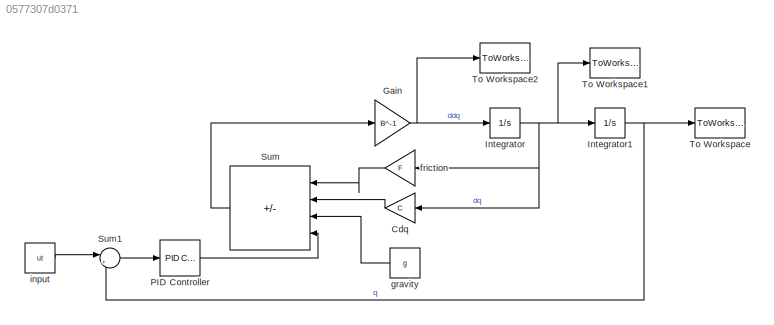
MODEL slx_0577307d0371
KIND model
CONFIG AbsTol = auto
CONFIG EnableMultiTasking = off
CONFIG FixedStep = auto
CONFIG MaxStep = auto
CONFIG MinStep = auto
CONFIG RelTol = 1e-3
CONFIG SampleTimeConstraint = Unconstrained
CONFIG SolverName = VariableStepAuto
CONFIG StartTime = 0.0
CONFIG StopTime = t_step
BLOCK [Gain] Cdq
  Gain = C
  Multiplication = Matrix(K*u)
BLOCK [Gain] Gain
  Gain = B^-1
  Multiplication = Matrix(K*u)
BLOCK [Integrator] Integrator
  InitialCondition = ddqt
BLOCK [Integrator] Integrator1
  InitialCondition = dqt
BLOCK [Reference] PID Controller  REF=slpidlib/PID Controller
  LibrarySourceBlock = simulink/Continuous/PID Controller
  SourceBlock = slpidlib/PID Controller
  SourceType = PID 1dof
BLOCK [Sum] Sum
  IconShape = rectangular
  Inputs = |---+
BLOCK [Sum] Sum1
  Inputs = |+-
BLOCK [ToWorkspace] To Workspace
  MaxDataPoints = inf
  SampleTime = -1
  Save2DSignal = 2-D array (concatenate along first dimension)
  VariableName = q
BLOCK [ToWorkspace] To Workspace1
  MaxDataPoints = inf
  SampleTime = -1
  Save2DSignal = 2-D array (concatenate along first dimension)
  VariableName = dq
BLOCK [ToWorkspace] To Workspace2
  MaxDataPoints = inf
  SampleTime = -1
  Save2DSignal = 2-D array (concatenate along first dimension)
  VariableName = ddq
BLOCK [Gain] friction
  Gain = F
  Multiplication = Matrix(K*u)
BLOCK [Constant] gravity
  Value = g
BLOCK [Constant] input
  Value = ut
LINE Cdq:1 -> Sum:2
NET Gain:1 -> Integrator:1, To Workspace2:1
NET Integrator1:1 -> Sum1:2, To Workspace:1
NET Integrator:1 -> Cdq:1, Integrator1:1, To Workspace1:1, friction:1
LINE PID Controller:1 -> Sum:4
LINE Sum1:1 -> PID Controller:1
LINE Sum:1 -> Gain:1
LINE friction:1 -> Sum:1
LINE gravity:1 -> Sum:3
LINE input:1 -> Sum1:1
note: NET lines group one-source signal fan-out (src -> all destinations, sorted); 1:1 wires keep LINE
